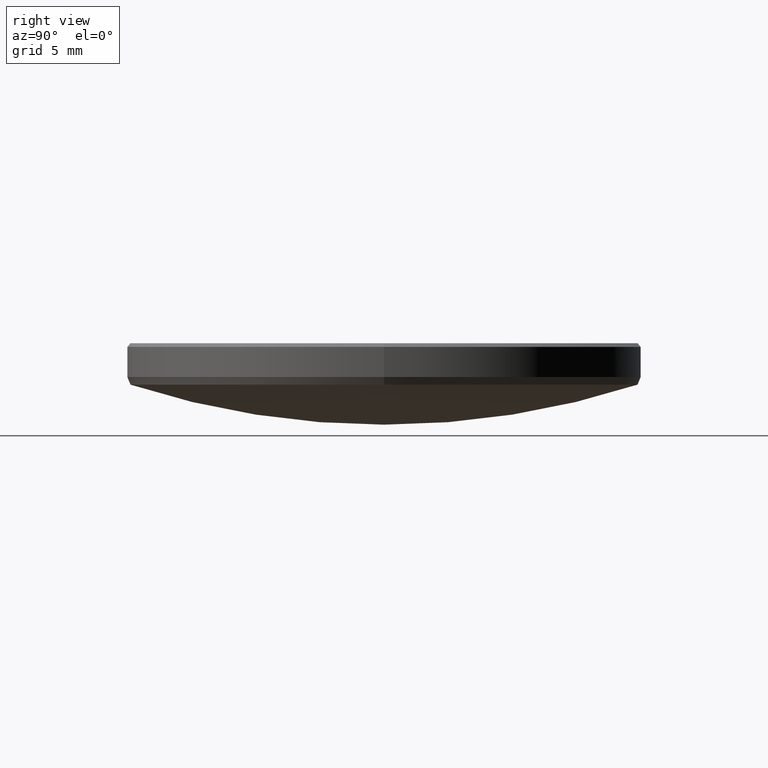
[diagram: clean part render]
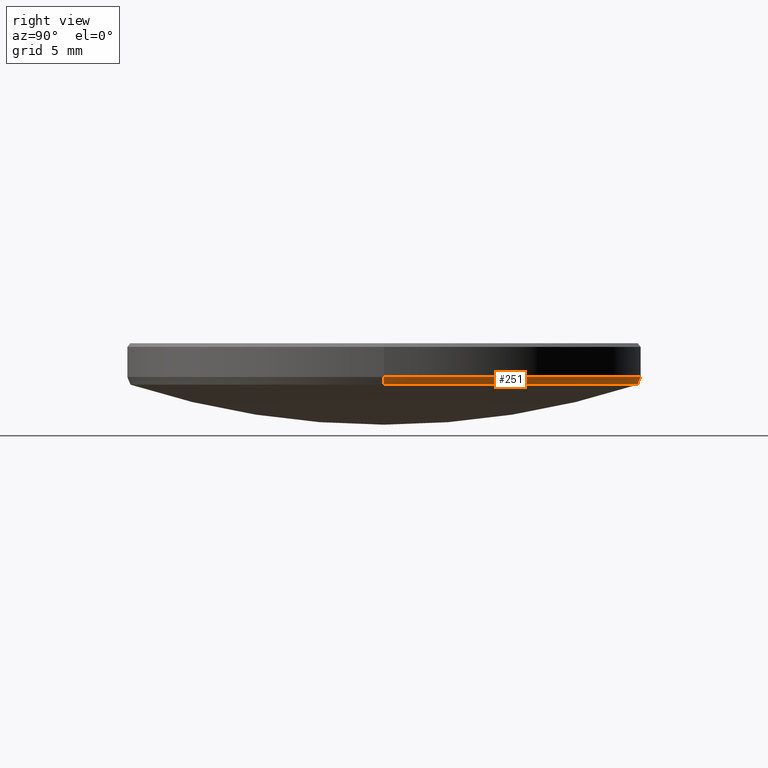
[diagram: same view with one face highlighted and labeled with its STEP entity id]
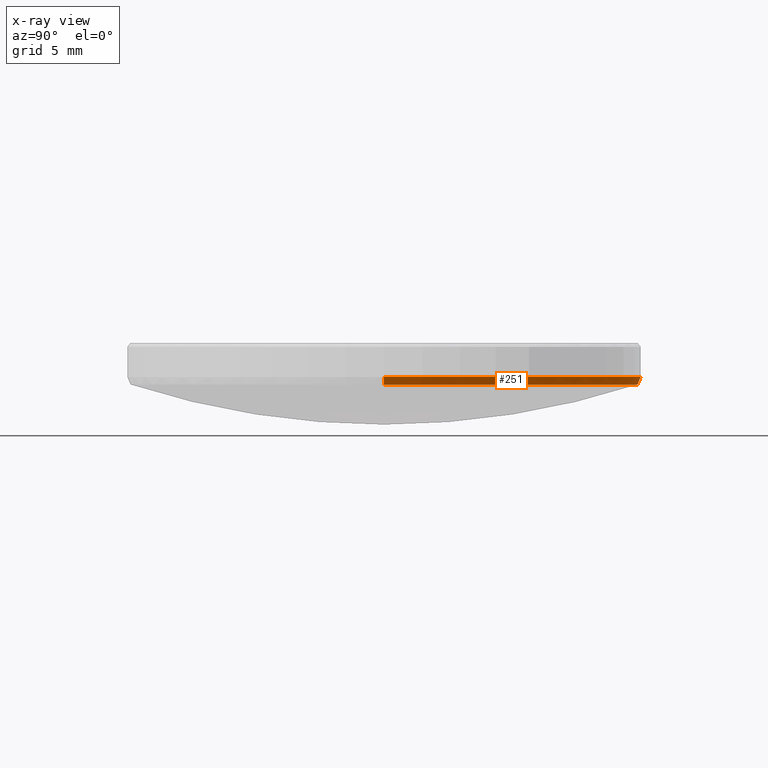
[diagram: x-ray of the same camera — body ghosted, the highlighted face saturated]
A machine part, right view. The second image highlights one B-rep face of the part: STEP entity #251.
The next image is the same camera in x-ray: the body ghosted, the highlighted face saturated — about 0% of this face is hidden behind the body in this view.
In plain terms, the highlighted conical surface has half-angle 26.771 deg.
Its self-contained STEP definition (entity closure, byte-faithful):
#2 = CARTESIAN_POINT ( 'NONE',  ( 12.69999999999999929, 0.000000000000000000, 4.313967534857077624 ) ) ;
#4 = CARTESIAN_POINT ( 'NONE',  ( -12.69999999999999929, 1.555301434917138433E-15, 4.313967534857077624 ) ) ;
#22 = CARTESIAN_POINT ( 'NONE',  ( -12.51034897911231170, 1.543688659132881617E-15, 3.938057364562333351 ) ) ;
#30 = DIRECTION ( 'NONE',  ( -0.000000000000000000, -0.000000000000000000, 1.000000000000000000 ) ) ;
#33 = CARTESIAN_POINT ( 'NONE',  ( 0.000000000000000000, 0.000000000000000000, 4.313967534857077624 ) ) ;
#43 = VERTEX_POINT ( 'NONE', #22 ) ;
#58 = LINE ( 'NONE', #4, #288 ) ;
#59 = AXIS2_PLACEMENT_3D ( 'NONE', #245, #126, #79 ) ;
#64 = ORIENTED_EDGE ( 'NONE', *, *, #120, .F. ) ;
#79 = DIRECTION ( 'NONE',  ( 1.000000000000000000, 0.000000000000000000, 0.000000000000000000 ) ) ;
#80 = CARTESIAN_POINT ( 'NONE',  ( 12.69999999999999929, 1.555301434917138433E-15, 4.313967534857077624 ) ) ;
#86 = DIRECTION ( 'NONE',  ( -0.000000000000000000, -0.000000000000000000, 1.000000000000000000 ) ) ;
#105 = CARTESIAN_POINT ( 'NONE',  ( 12.51034897911231170, 0.000000000000000000, 3.938057364562333351 ) ) ;
#106 = DIRECTION ( 'NONE',  ( 0.000000000000000000, 0.000000000000000000, -1.000000000000000000 ) ) ;
#108 = CARTESIAN_POINT ( 'NONE',  ( 0.000000000000000000, 0.000000000000000000, 3.938057364562333351 ) ) ;
#109 = CONICAL_SURFACE ( 'NONE', #197, 12.69999999999999929, 0.4672503280471582698 ) ;
#111 = ORIENTED_EDGE ( 'NONE', *, *, #268, .F. ) ;
#119 = ORIENTED_EDGE ( 'NONE', *, *, #146, .F. ) ;
#120 = EDGE_CURVE ( 'NONE', #302, #129, #261, .T. ) ;
#126 = DIRECTION ( 'NONE',  ( 0.000000000000000000, 0.000000000000000000, -1.000000000000000000 ) ) ;
#129 = VERTEX_POINT ( 'NONE', #105 ) ;
#146 = EDGE_CURVE ( 'NONE', #43, #302, #231, .T. ) ;
#155 = CARTESIAN_POINT ( 'NONE',  ( 0.000000000000000000, 0.000000000000000000, 4.313967534857077624 ) ) ;
#163 = AXIS2_PLACEMENT_3D ( 'NONE', #155, #30, #260 ) ;
#177 = ORIENTED_EDGE ( 'NONE', *, *, #258, .F. ) ;
#178 = DIRECTION ( 'NONE',  ( 1.000000000000000000, 0.000000000000000000, 0.000000000000000000 ) ) ;
#184 = DIRECTION ( 'NONE',  ( 1.000000000000000000, 0.000000000000000000, 0.000000000000000000 ) ) ;
#185 = FACE_OUTER_BOUND ( 'NONE', #329, .T. ) ;
#197 = AXIS2_PLACEMENT_3D ( 'NONE', #33, #86, #178 ) ;
#214 = EDGE_CURVE ( 'NONE', #43, #266, #58, .T. ) ;
#215 = VECTOR ( 'NONE', #250, 1000.000000000000114 ) ;
#231 = CIRCLE ( 'NONE', #279, 12.51034897911231170 ) ;
#234 = VERTEX_POINT ( 'NONE', #80 ) ;
#245 = CARTESIAN_POINT ( 'NONE',  ( 0.000000000000000000, 0.000000000000000000, 3.938057364562333351 ) ) ;
#250 = DIRECTION ( 'NONE',  ( 0.4504330560855231425, 0.000000000000000000, 0.8928102049066508616 ) ) ;
#251 = ADVANCED_FACE ( 'NONE', ( #185 ), #109, .T. ) ;
#258 = EDGE_CURVE ( 'NONE', #129, #234, #286, .T. ) ;
#259 = DIRECTION ( 'NONE',  ( -0.4504330560855231425, 5.516214003652961775E-17, 0.8928102049066508616 ) ) ;
#260 = DIRECTION ( 'NONE',  ( -1.000000000000000000, 0.000000000000000000, 0.000000000000000000 ) ) ;
#261 = CIRCLE ( 'NONE', #59, 12.51034897911231170 ) ;
#263 = CARTESIAN_POINT ( 'NONE',  ( 0.000000000000000000, 12.51034897911230992, 3.938057364562333351 ) ) ;
#266 = VERTEX_POINT ( 'NONE', #278 ) ;
#268 = EDGE_CURVE ( 'NONE', #234, #266, #299, .T. ) ;
#278 = CARTESIAN_POINT ( 'NONE',  ( -12.69999999999999929, 0.000000000000000000, 4.313967534857077624 ) ) ;
#279 = AXIS2_PLACEMENT_3D ( 'NONE', #108, #106, #184 ) ;
#286 = LINE ( 'NONE', #2, #215 ) ;
#288 = VECTOR ( 'NONE', #259, 1000.000000000000114 ) ;
#296 = ORIENTED_EDGE ( 'NONE', *, *, #214, .T. ) ;
#299 = CIRCLE ( 'NONE', #163, 12.69999999999999929 ) ;
#302 = VERTEX_POINT ( 'NONE', #263 ) ;
#329 = EDGE_LOOP ( 'NONE', ( #119, #296, #111, #177, #64 ) ) ;